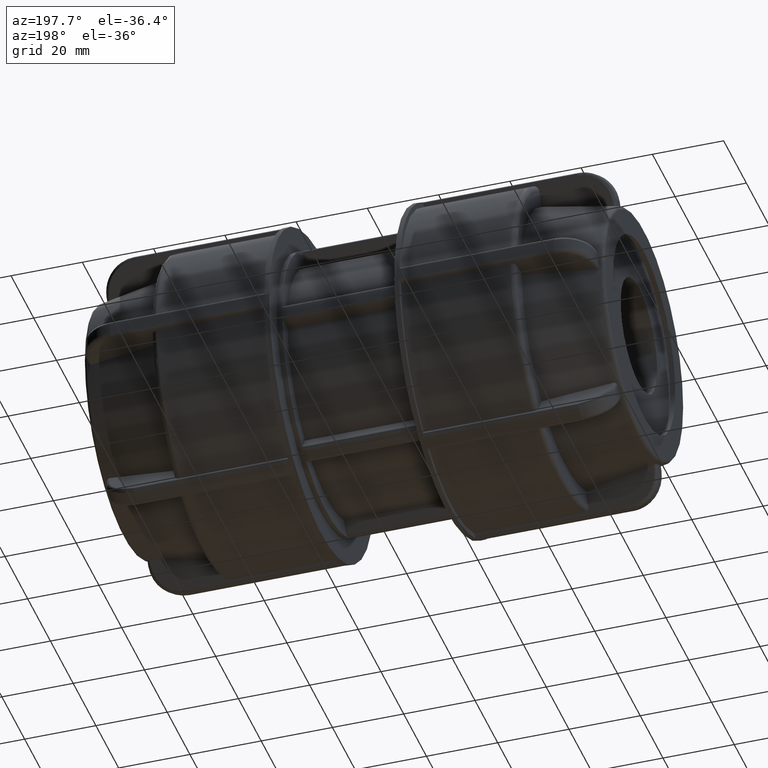
[diagram: clean part render]
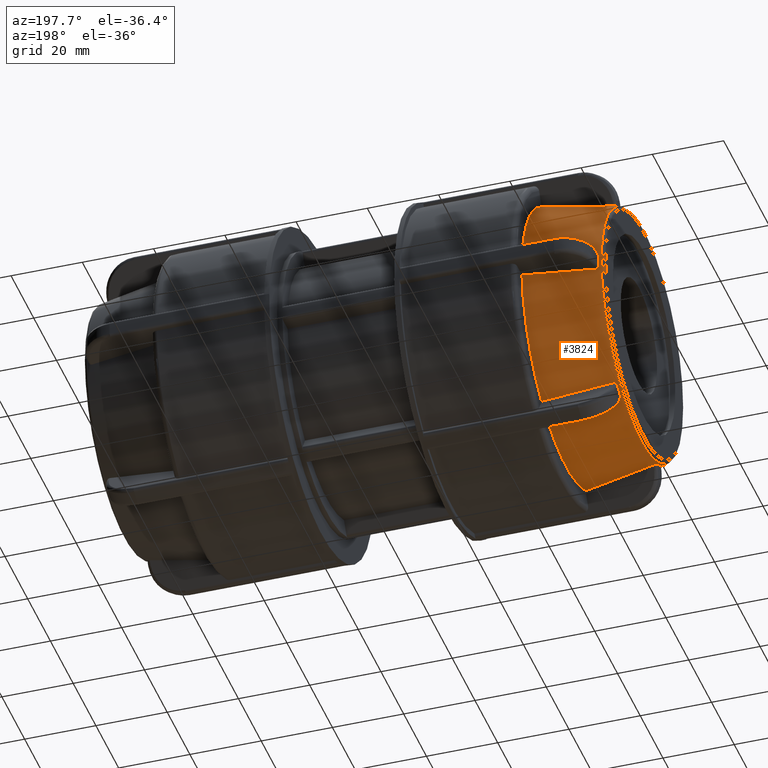
[diagram: same view with one face highlighted and labeled with its STEP entity id]
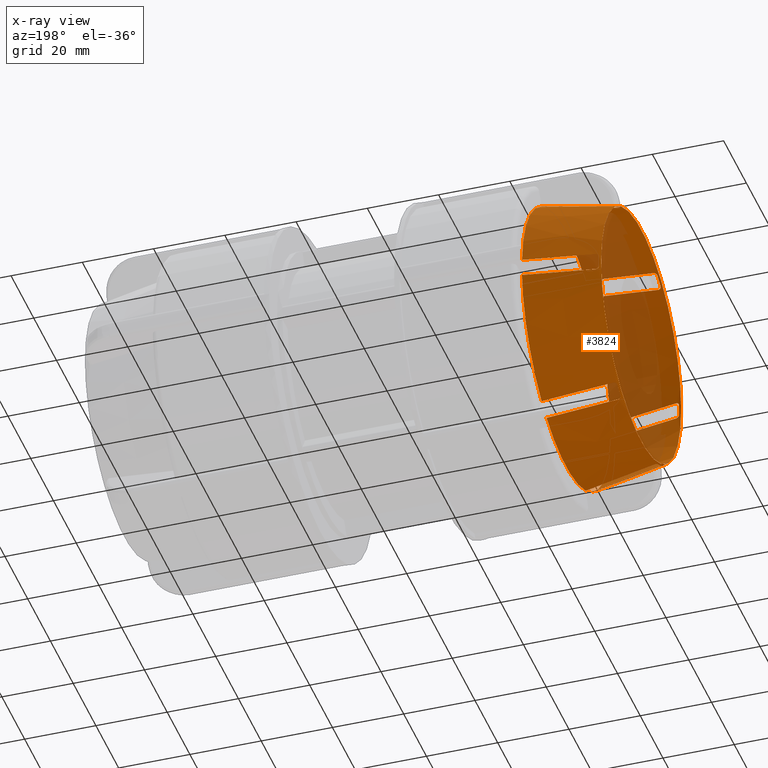
[diagram: x-ray of the same camera — body ghosted, the highlighted face saturated]
A machine part, auxiliary view. The second image highlights one B-rep face of the part: STEP entity #3824.
The next image is the same camera in x-ray: the body ghosted, the highlighted face saturated — about 24% of this face is hidden behind the body in this view.
In plain terms, the highlighted conical surface has half-angle 10 deg.
Its self-contained STEP definition (entity closure, byte-faithful):
#15=CONICAL_SURFACE('',#4187,36.9307804387577,10.);
#43=(
BOUNDED_CURVE()
B_SPLINE_CURVE(2,(#5802,#5803,#5804),.UNSPECIFIED.,.F.,.F.)
B_SPLINE_CURVE_WITH_KNOTS((3,3),(0.0978862907981361,2.07567538684826),
 .UNSPECIFIED.)
CURVE()
GEOMETRIC_REPRESENTATION_ITEM()
RATIONAL_B_SPLINE_CURVE((1.00010692586202,1.00113367958982,1.))
REPRESENTATION_ITEM('')
);
#44=(
BOUNDED_CURVE()
B_SPLINE_CURVE(2,(#6011,#6012,#6013),.UNSPECIFIED.,.F.,.F.)
B_SPLINE_CURVE_WITH_KNOTS((3,3),(0.097886288050849,2.07567538684826),
 .UNSPECIFIED.)
CURVE()
GEOMETRIC_REPRESENTATION_ITEM()
RATIONAL_B_SPLINE_CURVE((1.00010692558628,1.00113367669812,1.))
REPRESENTATION_ITEM('')
);
#45=(
BOUNDED_CURVE()
B_SPLINE_CURVE(2,(#6172,#6173,#6174),.UNSPECIFIED.,.F.,.F.)
B_SPLINE_CURVE_WITH_KNOTS((3,3),(0.0978862878450925,2.07567538684825),
 .UNSPECIFIED.)
CURVE()
GEOMETRIC_REPRESENTATION_ITEM()
RATIONAL_B_SPLINE_CURVE((1.00010692556916,1.00113367651901,1.))
REPRESENTATION_ITEM('')
);
#46=(
BOUNDED_CURVE()
B_SPLINE_CURVE(2,(#6333,#6334,#6335),.UNSPECIFIED.,.F.,.F.)
B_SPLINE_CURVE_WITH_KNOTS((3,3),(0.0978862877248222,2.07567538684826),
 .UNSPECIFIED.)
CURVE()
GEOMETRIC_REPRESENTATION_ITEM()
RATIONAL_B_SPLINE_CURVE((1.00010692554984,1.00113367631557,1.))
REPRESENTATION_ITEM('')
);
#47=(
BOUNDED_CURVE()
B_SPLINE_CURVE(2,(#6494,#6495,#6496),.UNSPECIFIED.,.F.,.F.)
B_SPLINE_CURVE_WITH_KNOTS((3,3),(0.0978862913825543,2.07567538684826),
 .UNSPECIFIED.)
CURVE()
GEOMETRIC_REPRESENTATION_ITEM()
RATIONAL_B_SPLINE_CURVE((1.00010692592062,1.00113368020443,1.))
REPRESENTATION_ITEM('')
);
#48=(
BOUNDED_CURVE()
B_SPLINE_CURVE(2,(#6571,#6572,#6573),.UNSPECIFIED.,.F.,.F.)
B_SPLINE_CURVE_WITH_KNOTS((3,3),(0.,1.97778909559017),.UNSPECIFIED.)
CURVE()
GEOMETRIC_REPRESENTATION_ITEM()
RATIONAL_B_SPLINE_CURVE((1.,1.00113368003445,1.00010692590445))
REPRESENTATION_ITEM('')
);
#49=(
BOUNDED_CURVE()
B_SPLINE_CURVE(2,(#6592,#6593,#6594),.UNSPECIFIED.,.F.,.F.)
B_SPLINE_CURVE_WITH_KNOTS((3,3),(0.,1.97778909576541),.UNSPECIFIED.)
CURVE()
GEOMETRIC_REPRESENTATION_ITEM()
RATIONAL_B_SPLINE_CURVE((1.,1.00113367997113,1.00010692589829))
REPRESENTATION_ITEM('')
);
#50=(
BOUNDED_CURVE()
B_SPLINE_CURVE(2,(#6613,#6614,#6615),.UNSPECIFIED.,.F.,.F.)
B_SPLINE_CURVE_WITH_KNOTS((3,3),(0.,1.97778909879865),.UNSPECIFIED.)
CURVE()
GEOMETRIC_REPRESENTATION_ITEM()
RATIONAL_B_SPLINE_CURVE((1.,1.00113367671594,1.00010692558796))
REPRESENTATION_ITEM('')
);
#51=(
BOUNDED_CURVE()
B_SPLINE_CURVE(2,(#6634,#6635,#6636),.UNSPECIFIED.,.F.,.F.)
B_SPLINE_CURVE_WITH_KNOTS((3,3),(0.,1.97778909900449),.UNSPECIFIED.)
CURVE()
GEOMETRIC_REPRESENTATION_ITEM()
RATIONAL_B_SPLINE_CURVE((1.,1.00113367653408,1.00010692557058))
REPRESENTATION_ITEM('')
);
#52=(
BOUNDED_CURVE()
B_SPLINE_CURVE(2,(#6655,#6656,#6657),.UNSPECIFIED.,.F.,.F.)
B_SPLINE_CURVE_WITH_KNOTS((3,3),(0.,1.9777890989628),.UNSPECIFIED.)
CURVE()
GEOMETRIC_REPRESENTATION_ITEM()
RATIONAL_B_SPLINE_CURVE((1.,1.00113367653728,1.00010692557093))
REPRESENTATION_ITEM('')
);
#53=(
BOUNDED_CURVE()
B_SPLINE_CURVE(2,(#6832,#6833,#6834),.UNSPECIFIED.,.F.,.F.)
B_SPLINE_CURVE_WITH_KNOTS((3,3),(0.0978862910512128,2.07567538684826),
 .UNSPECIFIED.)
CURVE()
GEOMETRIC_REPRESENTATION_ITEM()
RATIONAL_B_SPLINE_CURVE((1.00010692588545,1.00113367983534,1.))
REPRESENTATION_ITEM('')
);
#54=(
BOUNDED_CURVE()
B_SPLINE_CURVE(2,(#6906,#6907,#6908),.UNSPECIFIED.,.F.,.F.)
B_SPLINE_CURVE_WITH_KNOTS((3,3),(0.,1.97778909565073),.UNSPECIFIED.)
CURVE()
GEOMETRIC_REPRESENTATION_ITEM()
RATIONAL_B_SPLINE_CURVE((1.,1.00113368000241,1.00010692590137))
REPRESENTATION_ITEM('')
);
#69=B_SPLINE_CURVE_WITH_KNOTS('',3,(#5770,#5771,#5772,#5773,#5774,#5775,
#5776,#5777,#5778,#5779,#5780,#5781),.UNSPECIFIED.,.F.,.F.,(4,2,2,2,2,4),
(0.14021884159877,0.17398652698369,0.208477579891212,0.243444729621374,
0.278411879351537,0.279571970815808),.UNSPECIFIED.);
#73=B_SPLINE_CURVE_WITH_KNOTS('',3,(#5862,#5863,#5864,#5865,#5866,#5867,
#5868,#5869,#5870,#5871,#5872,#5873),.UNSPECIFIED.,.F.,.F.,(4,2,2,2,2,4),
(0.279506342428347,0.28066643389262,0.315633583622783,0.350600733352947,
0.385091786260468,0.418859471645387),.UNSPECIFIED.);
#76=B_SPLINE_CURVE_WITH_KNOTS('',3,(#5979,#5980,#5981,#5982,#5983,#5984,
#5985,#5986,#5987,#5988,#5989,#5990),.UNSPECIFIED.,.F.,.F.,(4,2,2,2,2,4),
(0.14021884159877,0.17398652698369,0.208477579891211,0.243444729621374,
0.278411879351538,0.279571970815791),.UNSPECIFIED.);
#80=B_SPLINE_CURVE_WITH_KNOTS('',3,(#6068,#6069,#6070,#6071,#6072,#6073,
#6074,#6075,#6076,#6077,#6078,#6079),.UNSPECIFIED.,.F.,.F.,(4,2,2,2,2,4),
(0.279506342428365,0.28066643389262,0.315633583622782,0.350600733352945,
0.385091786260467,0.418859471645386),.UNSPECIFIED.);
#83=B_SPLINE_CURVE_WITH_KNOTS('',3,(#6140,#6141,#6142,#6143,#6144,#6145,
#6146,#6147,#6148,#6149,#6150,#6151),.UNSPECIFIED.,.F.,.F.,(4,2,2,2,2,4),
(0.14021884159877,0.17398652698369,0.208477579891211,0.243444729621375,
0.278411879351539,0.279571970815789),.UNSPECIFIED.);
#87=B_SPLINE_CURVE_WITH_KNOTS('',3,(#6229,#6230,#6231,#6232,#6233,#6234,
#6235,#6236,#6237,#6238,#6239,#6240),.UNSPECIFIED.,.F.,.F.,(4,2,2,2,2,4),
(0.279506342428366,0.280666433892619,0.315633583622782,0.350600733352945,
0.385091786260467,0.418859471645386),.UNSPECIFIED.);
#90=B_SPLINE_CURVE_WITH_KNOTS('',3,(#6301,#6302,#6303,#6304,#6305,#6306,
#6307,#6308,#6309,#6310,#6311,#6312),.UNSPECIFIED.,.F.,.F.,(4,2,2,2,2,4),
(0.14021884159877,0.17398652698369,0.208477579891211,0.243444729621374,
0.278411879351537,0.279571970815788),.UNSPECIFIED.);
#94=B_SPLINE_CURVE_WITH_KNOTS('',3,(#6390,#6391,#6392,#6393,#6394,#6395,
#6396,#6397,#6398,#6399,#6400,#6401),.UNSPECIFIED.,.F.,.F.,(4,2,2,2,2,4),
(0.279506342428366,0.280666433892618,0.315633583622781,0.350600733352945,
0.385091786260466,0.418859471645386),.UNSPECIFIED.);
#97=B_SPLINE_CURVE_WITH_KNOTS('',3,(#6462,#6463,#6464,#6465,#6466,#6467,
#6468,#6469,#6470,#6471,#6472,#6473),.UNSPECIFIED.,.F.,.F.,(4,2,2,2,2,4),
(0.14021884159877,0.17398652698369,0.208477579891212,0.243444729621375,
0.278411879351537,0.279571970815813),.UNSPECIFIED.);
#101=B_SPLINE_CURVE_WITH_KNOTS('',3,(#6551,#6552,#6553,#6554,#6555,#6556,
#6557,#6558,#6559,#6560,#6561,#6562),.UNSPECIFIED.,.F.,.F.,(4,2,2,2,2,4),
(0.279506342428344,0.280666433892617,0.31563358362278,0.350600733352943,
0.385091786260465,0.418859471645385),.UNSPECIFIED.);
#111=B_SPLINE_CURVE_WITH_KNOTS('',3,(#6817,#6818,#6819,#6820,#6821,#6822,
#6823,#6824,#6825,#6826,#6827,#6828),.UNSPECIFIED.,.F.,.F.,(4,2,2,2,2,4),
(0.140218841598771,0.17398652698369,0.208477579891212,0.243444729621375,
0.278411879351539,0.279571970815811),.UNSPECIFIED.);
#114=B_SPLINE_CURVE_WITH_KNOTS('',3,(#6887,#6888,#6889,#6890,#6891,#6892,
#6893,#6894,#6895,#6896,#6897,#6898),.UNSPECIFIED.,.F.,.F.,(4,2,2,2,2,4),
(0.279506342428345,0.280666433892618,0.315633583622782,0.350600733352945,
0.385091786260466,0.418859471645386),.UNSPECIFIED.);
#203=FACE_BOUND('',#685,.T.);
#438=FACE_OUTER_BOUND('',#684,.T.);
#684=EDGE_LOOP('',(#3080,#3081,#3082,#3083,#3084,#3085,#3086,#3087,#3088,
#3089,#3090,#3091,#3092,#3093,#3094,#3095,#3096,#3097,#3098,#3099,#3100,
#3101,#3102,#3103,#3104,#3105,#3106,#3107,#3108,#3109,#3110,#3111,#3112,
#3113,#3114,#3115));
#685=EDGE_LOOP('',(#3116));
#1308=CIRCLE('',#4034,35.2574373918344);
#1329=CIRCLE('',#4063,35.2574373918344);
#1337=CIRCLE('',#4078,35.2574373918344);
#1345=CIRCLE('',#4093,35.2574373918344);
#1353=CIRCLE('',#4108,35.2574373918344);
#1356=CIRCLE('',#4118,38.8615608775154);
#1358=CIRCLE('',#4121,38.8615608775154);
#1360=CIRCLE('',#4124,38.8615608775154);
#1362=CIRCLE('',#4127,38.8615608775154);
#1363=CIRCLE('',#4129,38.8615608775154);
#1366=CIRCLE('',#4133,38.8615608775154);
#1386=CIRCLE('',#4180,35.2574373918344);
#1389=CIRCLE('',#4186,35.1457081218349);
#1567=VERTEX_POINT('',#5768);
#1568=VERTEX_POINT('',#5769);
#1572=VERTEX_POINT('',#5800);
#1579=VERTEX_POINT('',#5860);
#1580=VERTEX_POINT('',#5861);
#1606=VERTEX_POINT('',#5977);
#1607=VERTEX_POINT('',#5978);
#1611=VERTEX_POINT('',#6009);
#1616=VERTEX_POINT('',#6066);
#1617=VERTEX_POINT('',#6067);
#1622=VERTEX_POINT('',#6138);
#1623=VERTEX_POINT('',#6139);
#1627=VERTEX_POINT('',#6170);
#1632=VERTEX_POINT('',#6227);
#1633=VERTEX_POINT('',#6228);
#1638=VERTEX_POINT('',#6299);
#1639=VERTEX_POINT('',#6300);
#1643=VERTEX_POINT('',#6331);
#1648=VERTEX_POINT('',#6388);
#1649=VERTEX_POINT('',#6389);
#1654=VERTEX_POINT('',#6460);
#1655=VERTEX_POINT('',#6461);
#1659=VERTEX_POINT('',#6492);
#1664=VERTEX_POINT('',#6549);
#1665=VERTEX_POINT('',#6550);
#1666=VERTEX_POINT('',#6570);
#1670=VERTEX_POINT('',#6591);
#1674=VERTEX_POINT('',#6612);
#1678=VERTEX_POINT('',#6633);
#1682=VERTEX_POINT('',#6654);
#1687=VERTEX_POINT('',#6677);
#1688=VERTEX_POINT('',#6690);
#1700=VERTEX_POINT('',#6815);
#1701=VERTEX_POINT('',#6816);
#1705=VERTEX_POINT('',#6885);
#1706=VERTEX_POINT('',#6886);
#1708=VERTEX_POINT('',#6912);
#1981=EDGE_CURVE('',#1567,#1568,#69,.F.);
#1988=EDGE_CURVE('',#1567,#1572,#43,.T.);
#1996=EDGE_CURVE('',#1579,#1580,#73,.F.);
#1999=EDGE_CURVE('',#1579,#1568,#1308,.T.);
#2030=EDGE_CURVE('',#1606,#1607,#76,.F.);
#2037=EDGE_CURVE('',#1606,#1611,#44,.T.);
#2044=EDGE_CURVE('',#1616,#1617,#80,.F.);
#2047=EDGE_CURVE('',#1616,#1607,#1329,.T.);
#2055=EDGE_CURVE('',#1622,#1623,#83,.F.);
#2062=EDGE_CURVE('',#1622,#1627,#45,.T.);
#2069=EDGE_CURVE('',#1632,#1633,#87,.F.);
#2072=EDGE_CURVE('',#1632,#1623,#1337,.T.);
#2080=EDGE_CURVE('',#1638,#1639,#90,.F.);
#2087=EDGE_CURVE('',#1638,#1643,#46,.T.);
#2094=EDGE_CURVE('',#1648,#1649,#94,.F.);
#2097=EDGE_CURVE('',#1648,#1639,#1345,.T.);
#2105=EDGE_CURVE('',#1654,#1655,#97,.F.);
#2112=EDGE_CURVE('',#1654,#1659,#47,.T.);
#2119=EDGE_CURVE('',#1664,#1665,#101,.F.);
#2122=EDGE_CURVE('',#1664,#1655,#1353,.T.);
#2124=EDGE_CURVE('',#1666,#1665,#48,.T.);
#2129=EDGE_CURVE('',#1670,#1580,#49,.T.);
#2134=EDGE_CURVE('',#1674,#1617,#50,.T.);
#2139=EDGE_CURVE('',#1678,#1633,#51,.T.);
#2144=EDGE_CURVE('',#1682,#1649,#52,.T.);
#2151=EDGE_CURVE('',#1687,#1659,#1356,.T.);
#2153=EDGE_CURVE('',#1666,#1643,#1358,.T.);
#2155=EDGE_CURVE('',#1682,#1627,#1360,.T.);
#2157=EDGE_CURVE('',#1678,#1611,#1362,.T.);
#2158=EDGE_CURVE('',#1670,#1688,#1363,.T.);
#2162=EDGE_CURVE('',#1674,#1572,#1366,.T.);
#2189=EDGE_CURVE('',#1700,#1701,#111,.F.);
#2192=EDGE_CURVE('',#1700,#1688,#53,.T.);
#2198=EDGE_CURVE('',#1705,#1706,#114,.F.);
#2201=EDGE_CURVE('',#1705,#1701,#1386,.T.);
#2203=EDGE_CURVE('',#1687,#1706,#54,.T.);
#2205=EDGE_CURVE('',#1708,#1708,#1389,.T.);
#3080=ORIENTED_EDGE('',*,*,#1988,.T.);
#3081=ORIENTED_EDGE('',*,*,#2162,.F.);
#3082=ORIENTED_EDGE('',*,*,#2134,.T.);
#3083=ORIENTED_EDGE('',*,*,#2044,.F.);
#3084=ORIENTED_EDGE('',*,*,#2047,.T.);
#3085=ORIENTED_EDGE('',*,*,#2030,.F.);
#3086=ORIENTED_EDGE('',*,*,#2037,.T.);
#3087=ORIENTED_EDGE('',*,*,#2157,.F.);
#3088=ORIENTED_EDGE('',*,*,#2139,.T.);
#3089=ORIENTED_EDGE('',*,*,#2069,.F.);
#3090=ORIENTED_EDGE('',*,*,#2072,.T.);
#3091=ORIENTED_EDGE('',*,*,#2055,.F.);
#3092=ORIENTED_EDGE('',*,*,#2062,.T.);
#3093=ORIENTED_EDGE('',*,*,#2155,.F.);
#3094=ORIENTED_EDGE('',*,*,#2144,.T.);
#3095=ORIENTED_EDGE('',*,*,#2094,.F.);
#3096=ORIENTED_EDGE('',*,*,#2097,.T.);
#3097=ORIENTED_EDGE('',*,*,#2080,.F.);
#3098=ORIENTED_EDGE('',*,*,#2087,.T.);
#3099=ORIENTED_EDGE('',*,*,#2153,.F.);
#3100=ORIENTED_EDGE('',*,*,#2124,.T.);
#3101=ORIENTED_EDGE('',*,*,#2119,.F.);
#3102=ORIENTED_EDGE('',*,*,#2122,.T.);
#3103=ORIENTED_EDGE('',*,*,#2105,.F.);
#3104=ORIENTED_EDGE('',*,*,#2112,.T.);
#3105=ORIENTED_EDGE('',*,*,#2151,.F.);
#3106=ORIENTED_EDGE('',*,*,#2203,.T.);
#3107=ORIENTED_EDGE('',*,*,#2198,.F.);
#3108=ORIENTED_EDGE('',*,*,#2201,.T.);
#3109=ORIENTED_EDGE('',*,*,#2189,.F.);
#3110=ORIENTED_EDGE('',*,*,#2192,.T.);
#3111=ORIENTED_EDGE('',*,*,#2158,.F.);
#3112=ORIENTED_EDGE('',*,*,#2129,.T.);
#3113=ORIENTED_EDGE('',*,*,#1996,.F.);
#3114=ORIENTED_EDGE('',*,*,#1999,.T.);
#3115=ORIENTED_EDGE('',*,*,#1981,.F.);
#3116=ORIENTED_EDGE('',*,*,#2205,.F.);
#3824=ADVANCED_FACE('',(#438,#203),#15,.T.);
#4034=AXIS2_PLACEMENT_3D('',#5877,#4658,#4659);
#4063=AXIS2_PLACEMENT_3D('',#6083,#4735,#4736);
#4078=AXIS2_PLACEMENT_3D('',#6244,#4774,#4775);
#4093=AXIS2_PLACEMENT_3D('',#6405,#4813,#4814);
#4108=AXIS2_PLACEMENT_3D('',#6566,#4852,#4853);
#4118=AXIS2_PLACEMENT_3D('',#6679,#4888,#4889);
#4121=AXIS2_PLACEMENT_3D('',#6682,#4894,#4895);
#4124=AXIS2_PLACEMENT_3D('',#6685,#4900,#4901);
#4127=AXIS2_PLACEMENT_3D('',#6688,#4906,#4907);
#4129=AXIS2_PLACEMENT_3D('',#6691,#4910,#4911);
#4133=AXIS2_PLACEMENT_3D('',#6697,#4919,#4920);
#4180=AXIS2_PLACEMENT_3D('',#6902,#5023,#5024);
#4186=AXIS2_PLACEMENT_3D('',#6913,#5035,#5036);
#4187=AXIS2_PLACEMENT_3D('',#6914,#5037,#5038);
#4658=DIRECTION('center_axis',(-1.,-3.19338564753439E-16,-2.28229996066269E-17));
#4659=DIRECTION('ref_axis',(-3.3251542972004E-16,1.,0.));
#4735=DIRECTION('center_axis',(-1.,-3.4569229468664E-16,-2.28229996066269E-17));
#4736=DIRECTION('ref_axis',(-3.3251542972004E-16,1.,0.));
#4774=DIRECTION('center_axis',(-1.,-3.58869159653241E-16,-4.62223186652937E-32));
#4775=DIRECTION('ref_axis',(-3.3251542972004E-16,1.,0.));
#4813=DIRECTION('center_axis',(-1.,-3.4569229468664E-16,2.28229996066268E-17));
#4814=DIRECTION('ref_axis',(-3.3251542972004E-16,1.,0.));
#4852=DIRECTION('center_axis',(-1.,-3.19338564753439E-16,2.28229996066269E-17));
#4853=DIRECTION('ref_axis',(-3.3251542972004E-16,1.,0.));
#4888=DIRECTION('center_axis',(1.,3.06161699786838E-16,0.));
#4889=DIRECTION('ref_axis',(0.,0.,-1.));
#4894=DIRECTION('center_axis',(1.,3.06161699786838E-16,0.));
#4895=DIRECTION('ref_axis',(0.,0.,-1.));
#4900=DIRECTION('center_axis',(1.,3.06161699786838E-16,0.));
#4901=DIRECTION('ref_axis',(0.,0.,-1.));
#4906=DIRECTION('center_axis',(1.,3.06161699786838E-16,0.));
#4907=DIRECTION('ref_axis',(0.,0.,-1.));
#4910=DIRECTION('center_axis',(1.,3.06161699786838E-16,0.));
#4911=DIRECTION('ref_axis',(0.,0.,-1.));
#4919=DIRECTION('center_axis',(1.,3.06161699786838E-16,0.));
#4920=DIRECTION('ref_axis',(0.,0.,-1.));
#5023=DIRECTION('center_axis',(-1.,-3.06161699786838E-16,0.));
#5024=DIRECTION('ref_axis',(-3.3251542972004E-16,1.,0.));
#5035=DIRECTION('center_axis',(-1.,-2.52713195199026E-16,5.58312934150069E-32));
#5036=DIRECTION('ref_axis',(2.52713195199026E-16,-1.,3.06161699786839E-17));
#5037=DIRECTION('center_axis',(1.,3.06161699786838E-16,0.));
#5038=DIRECTION('ref_axis',(-3.3251542972004E-16,1.,0.));
#5768=CARTESIAN_POINT('',(-70.62,15.5005965971032,-31.8478208538122));
#5769=CARTESIAN_POINT('',(-71.54,16.242688432224,-31.2931616161233));
#5770=CARTESIAN_POINT('Ctrl Pts',(-71.54,16.242688432224,-31.2931616161233));
#5771=CARTESIAN_POINT('Ctrl Pts',(-71.54,16.1425106026286,-31.3451588318056));
#5772=CARTESIAN_POINT('Ctrl Pts',(-71.5180449775594,16.0375118115445,-31.4033489572621));
#5773=CARTESIAN_POINT('Ctrl Pts',(-71.4278523184448,15.8453531800499,-31.5185536624937));
#5774=CARTESIAN_POINT('Ctrl Pts',(-71.3585799839163,15.7586429339944,-31.5755509506214));
#5775=CARTESIAN_POINT('Ctrl Pts',(-71.1973968149064,15.6245827303515,-31.6737994008835));
#5776=CARTESIAN_POINT('Ctrl Pts',(-71.0944200419447,15.5687995860925,-31.7214114704913));
#5777=CARTESIAN_POINT('Ctrl Pts',(-70.8688335911244,15.5019044530926,-31.7984138873874));
#5778=CARTESIAN_POINT('Ctrl Pts',(-70.7462357545523,15.4907913737613,-31.8278379733401));
#5779=CARTESIAN_POINT('Ctrl Pts',(-70.6276411304749,15.4999427418108,-31.8466406447133));
#5780=CARTESIAN_POINT('Ctrl Pts',(-70.6238244710552,15.5002585753472,-31.8472353829566));
#5781=CARTESIAN_POINT('Ctrl Pts',(-70.6200000000001,15.5005965971035,-31.8478208538126));
#5800=CARTESIAN_POINT('',(-51.1,17.225468418756,-34.8353864854586));
#5802=CARTESIAN_POINT('Ctrl Pts',(-70.6200000000002,15.5005965971032,-31.8478208538121));
#5803=CARTESIAN_POINT('Ctrl Pts',(-61.3143031079899,16.3230705973264,-33.2723876101031));
#5804=CARTESIAN_POINT('Ctrl Pts',(-51.1,17.225468418756,-34.8353864854586));
#5860=CARTESIAN_POINT('',(-71.54,18.9793287081828,-29.7131616161234));
#5861=CARTESIAN_POINT('',(-70.62,19.8307236160255,-29.3478208538123));
#5862=CARTESIAN_POINT('Ctrl Pts',(-70.6200000000001,19.8307236160257,-29.3478208538126));
#5863=CARTESIAN_POINT('Ctrl Pts',(-70.6238244710552,19.8303855942694,-29.3472353829566));
#5864=CARTESIAN_POINT('Ctrl Pts',(-70.6276411304749,19.8300284526103,-29.3466644939691));
#5865=CARTESIAN_POINT('Ctrl Pts',(-70.7462357545523,19.8183205455668,-29.3293378410722));
#5866=CARTESIAN_POINT('Ctrl Pts',(-70.8688335911244,19.787281999983,-29.324250007111));
#5867=CARTESIAN_POINT('Ctrl Pts',(-71.0944200419447,19.6871483842982,-29.3436816832304));
#5868=CARTESIAN_POINT('Ctrl Pts',(-71.1973968149064,19.6180235503616,-29.3681852684579));
#5869=CARTESIAN_POINT('Ctrl Pts',(-71.3585799839163,19.4659077947307,-29.4351605853181));
#5870=CARTESIAN_POINT('Ctrl Pts',(-71.4278523184448,19.3731915722376,-29.4817552171067));
#5871=CARTESIAN_POINT('Ctrl Pts',(-71.5180449775594,19.1773420551242,-29.5905671209216));
#5872=CARTESIAN_POINT('Ctrl Pts',(-71.54,19.0744485326874,-29.6524036786389));
#5873=CARTESIAN_POINT('Ctrl Pts',(-71.54,18.9793287081828,-29.7131616161234));
#5877=CARTESIAN_POINT('Origin',(-71.54,-2.19028080027504E-14,0.));
#5977=CARTESIAN_POINT('',(-70.62,-19.830723616025,-29.3478208538113));
#5978=CARTESIAN_POINT('',(-71.54,-18.9793287081829,-29.7131616161233));
#5979=CARTESIAN_POINT('Ctrl Pts',(-71.54,-18.9793287081829,-29.7131616161233));
#5980=CARTESIAN_POINT('Ctrl Pts',(-71.54,-19.0744485326875,-29.6524036786389));
#5981=CARTESIAN_POINT('Ctrl Pts',(-71.5180449775593,-19.1773420551242,-29.5905671209216));
#5982=CARTESIAN_POINT('Ctrl Pts',(-71.4278523184447,-19.3731915722377,-29.4817552171066));
#5983=CARTESIAN_POINT('Ctrl Pts',(-71.3585799839163,-19.4659077947308,-29.4351605853181));
#5984=CARTESIAN_POINT('Ctrl Pts',(-71.1973968149064,-19.6180235503617,-29.3681852684578));
#5985=CARTESIAN_POINT('Ctrl Pts',(-71.0944200419447,-19.6871483842983,-29.3436816832304));
#5986=CARTESIAN_POINT('Ctrl Pts',(-70.8688335911243,-19.7872819999831,-29.324250007111));
#5987=CARTESIAN_POINT('Ctrl Pts',(-70.7462357545522,-19.8183205455669,-29.3293378410722));
#5988=CARTESIAN_POINT('Ctrl Pts',(-70.6276411304749,-19.8300284526104,-29.3466644939691));
#5989=CARTESIAN_POINT('Ctrl Pts',(-70.6238244710553,-19.8303855942694,-29.3472353829565));
#5990=CARTESIAN_POINT('Ctrl Pts',(-70.6200000000003,-19.8307236160258,-29.3478208538126));
#6009=CARTESIAN_POINT('',(-51.1,-21.5555954376783,-32.3353864854586));
#6011=CARTESIAN_POINT('Ctrl Pts',(-70.6200000000002,-19.830723616025,-29.3478208538112));
#6012=CARTESIAN_POINT('Ctrl Pts',(-61.3143028211677,-20.6531976415944,-30.7723876540031));
#6013=CARTESIAN_POINT('Ctrl Pts',(-51.1,-21.5555954376783,-32.3353864854586));
#6066=CARTESIAN_POINT('',(-71.54,-16.2426884322241,-31.2931616161233));
#6067=CARTESIAN_POINT('',(-70.62,-15.5005965971028,-31.8478208538113));
#6068=CARTESIAN_POINT('Ctrl Pts',(-70.6200000000003,-15.5005965971036,-31.8478208538126));
#6069=CARTESIAN_POINT('Ctrl Pts',(-70.6238244710553,-15.5002585753473,-31.8472353829565));
#6070=CARTESIAN_POINT('Ctrl Pts',(-70.6276411304749,-15.4999427418109,-31.8466406447133));
#6071=CARTESIAN_POINT('Ctrl Pts',(-70.7462357545523,-15.4907913737614,-31.82783797334));
#6072=CARTESIAN_POINT('Ctrl Pts',(-70.8688335911244,-15.5019044530927,-31.7984138873874));
#6073=CARTESIAN_POINT('Ctrl Pts',(-71.0944200419447,-15.5687995860926,-31.7214114704912));
#6074=CARTESIAN_POINT('Ctrl Pts',(-71.1973968149064,-15.6245827303516,-31.6737994008835));
#6075=CARTESIAN_POINT('Ctrl Pts',(-71.3585799839163,-15.7586429339945,-31.5755509506214));
#6076=CARTESIAN_POINT('Ctrl Pts',(-71.4278523184447,-15.84535318005,-31.5185536624937));
#6077=CARTESIAN_POINT('Ctrl Pts',(-71.5180449775593,-16.0375118115446,-31.403348957262));
#6078=CARTESIAN_POINT('Ctrl Pts',(-71.54,-16.1425106026287,-31.3451588318056));
#6079=CARTESIAN_POINT('Ctrl Pts',(-71.54,-16.2426884322241,-31.2931616161233));
#6083=CARTESIAN_POINT('Origin',(-71.54,-2.19028080027504E-14,0.));
#6138=CARTESIAN_POINT('',(-70.62,-35.3313202131277,2.50000000000001));
#6139=CARTESIAN_POINT('',(-71.54,-35.222017140407,1.58000000000001));
#6140=CARTESIAN_POINT('Ctrl Pts',(-71.54,-35.222017140407,1.58000000000001));
#6141=CARTESIAN_POINT('Ctrl Pts',(-71.54,-35.2169591353162,1.69275515316672));
#6142=CARTESIAN_POINT('Ctrl Pts',(-71.5180449775593,-35.2148538666688,1.81278183634044));
#6143=CARTESIAN_POINT('Ctrl Pts',(-71.4278523184447,-35.2185447522876,2.03679844538709));
#6144=CARTESIAN_POINT('Ctrl Pts',(-71.3585799839163,-35.2245507287253,2.14039036530335));
#6145=CARTESIAN_POINT('Ctrl Pts',(-71.1973968149064,-35.2426062807133,2.30561413242567));
#6146=CARTESIAN_POINT('Ctrl Pts',(-71.0944200419447,-35.2559479703908,2.37772978726083));
#6147=CARTESIAN_POINT('Ctrl Pts',(-70.8688335911243,-35.2891864530757,2.47416388027637));
#6148=CARTESIAN_POINT('Ctrl Pts',(-70.7462357545522,-35.3091119193282,2.49850013226785));
#6149=CARTESIAN_POINT('Ctrl Pts',(-70.6276411304749,-35.3299711944212,2.49997615074426));
#6150=CARTESIAN_POINT('Ctrl Pts',(-70.6238244710553,-35.3306441696166,2.50000000000001));
#6151=CARTESIAN_POINT('Ctrl Pts',(-70.6200000000003,-35.3313202131293,2.50000000000001));
#6170=CARTESIAN_POINT('',(-51.1,-38.7810638564343,2.50000000000001));
#6172=CARTESIAN_POINT('Ctrl Pts',(-70.6200000000002,-35.3313202131277,2.50000000000001));
#6173=CARTESIAN_POINT('Ctrl Pts',(-61.3143028000344,-36.9762682680014,2.50000000000001));
#6174=CARTESIAN_POINT('Ctrl Pts',(-51.1,-38.7810638564343,2.50000000000001));
#6227=CARTESIAN_POINT('',(-71.54,-35.222017140407,-1.57999999999999));
#6228=CARTESIAN_POINT('',(-70.62,-35.3313202131277,-2.49999999999999));
#6229=CARTESIAN_POINT('Ctrl Pts',(-70.6200000000002,-35.3313202131293,-2.49999999999999));
#6230=CARTESIAN_POINT('Ctrl Pts',(-70.6238244710553,-35.3306441696166,-2.49999999999999));
#6231=CARTESIAN_POINT('Ctrl Pts',(-70.6276411304749,-35.3299711944212,-2.49997615074424));
#6232=CARTESIAN_POINT('Ctrl Pts',(-70.7462357545522,-35.3091119193282,-2.49850013226782));
#6233=CARTESIAN_POINT('Ctrl Pts',(-70.8688335911243,-35.2891864530757,-2.47416388027635));
#6234=CARTESIAN_POINT('Ctrl Pts',(-71.0944200419447,-35.2559479703908,-2.37772978726082));
#6235=CARTESIAN_POINT('Ctrl Pts',(-71.1973968149064,-35.2426062807133,-2.30561413242564));
#6236=CARTESIAN_POINT('Ctrl Pts',(-71.3585799839163,-35.2245507287253,-2.14039036530332));
#6237=CARTESIAN_POINT('Ctrl Pts',(-71.4278523184447,-35.2185447522876,-2.03679844538707));
#6238=CARTESIAN_POINT('Ctrl Pts',(-71.5180449775593,-35.2148538666688,-1.81278183634042));
#6239=CARTESIAN_POINT('Ctrl Pts',(-71.54,-35.2169591353162,-1.69275515316669));
#6240=CARTESIAN_POINT('Ctrl Pts',(-71.54,-35.222017140407,-1.57999999999999));
#6244=CARTESIAN_POINT('Origin',(-71.54,-2.19028080027504E-14,0.));
#6299=CARTESIAN_POINT('',(-70.62,-15.5005965971027,31.8478208538112));
#6300=CARTESIAN_POINT('',(-71.54,-16.2426884322241,31.2931616161233));
#6301=CARTESIAN_POINT('Ctrl Pts',(-71.54,-16.2426884322241,31.2931616161233));
#6302=CARTESIAN_POINT('Ctrl Pts',(-71.54,-16.1425106026287,31.3451588318056));
#6303=CARTESIAN_POINT('Ctrl Pts',(-71.5180449775593,-16.0375118115446,31.403348957262));
#6304=CARTESIAN_POINT('Ctrl Pts',(-71.4278523184447,-15.8453531800499,31.5185536624937));
#6305=CARTESIAN_POINT('Ctrl Pts',(-71.3585799839163,-15.7586429339945,31.5755509506214));
#6306=CARTESIAN_POINT('Ctrl Pts',(-71.1973968149064,-15.6245827303516,31.6737994008835));
#6307=CARTESIAN_POINT('Ctrl Pts',(-71.0944200419447,-15.5687995860926,31.7214114704913));
#6308=CARTESIAN_POINT('Ctrl Pts',(-70.8688335911244,-15.5019044530926,31.7984138873874));
#6309=CARTESIAN_POINT('Ctrl Pts',(-70.7462357545522,-15.4907913737614,31.82783797334));
#6310=CARTESIAN_POINT('Ctrl Pts',(-70.6276411304749,-15.4999427418108,31.8466406447133));
#6311=CARTESIAN_POINT('Ctrl Pts',(-70.6238244710553,-15.5002585753472,31.8472353829566));
#6312=CARTESIAN_POINT('Ctrl Pts',(-70.6200000000003,-15.5005965971035,31.8478208538126));
#6331=CARTESIAN_POINT('',(-51.1,-17.2254684187561,34.8353864854586));
#6333=CARTESIAN_POINT('Ctrl Pts',(-70.6200000000002,-15.5005965971027,31.8478208538111));
#6334=CARTESIAN_POINT('Ctrl Pts',(-61.3143027867637,-16.3230706257123,33.2723876592688));
#6335=CARTESIAN_POINT('Ctrl Pts',(-51.1,-17.2254684187561,34.8353864854586));
#6388=CARTESIAN_POINT('',(-71.54,-18.9793287081829,29.7131616161233));
#6389=CARTESIAN_POINT('',(-70.62,-19.830723616025,29.3478208538112));
#6390=CARTESIAN_POINT('Ctrl Pts',(-70.6200000000003,-19.8307236160257,29.3478208538126));
#6391=CARTESIAN_POINT('Ctrl Pts',(-70.6238244710553,-19.8303855942694,29.3472353829565));
#6392=CARTESIAN_POINT('Ctrl Pts',(-70.6276411304749,-19.8300284526104,29.3466644939691));
#6393=CARTESIAN_POINT('Ctrl Pts',(-70.7462357545523,-19.8183205455668,29.3293378410722));
#6394=CARTESIAN_POINT('Ctrl Pts',(-70.8688335911244,-19.787281999983,29.324250007111));
#6395=CARTESIAN_POINT('Ctrl Pts',(-71.0944200419447,-19.6871483842982,29.3436816832304));
#6396=CARTESIAN_POINT('Ctrl Pts',(-71.1973968149064,-19.6180235503617,29.3681852684579));
#6397=CARTESIAN_POINT('Ctrl Pts',(-71.3585799839163,-19.4659077947308,29.4351605853181));
#6398=CARTESIAN_POINT('Ctrl Pts',(-71.4278523184447,-19.3731915722377,29.4817552171066));
#6399=CARTESIAN_POINT('Ctrl Pts',(-71.5180449775593,-19.1773420551242,29.5905671209216));
#6400=CARTESIAN_POINT('Ctrl Pts',(-71.54,-19.0744485326875,29.6524036786389));
#6401=CARTESIAN_POINT('Ctrl Pts',(-71.54,-18.9793287081829,29.7131616161233));
#6405=CARTESIAN_POINT('Origin',(-71.54,-2.19028080027504E-14,0.));
#6460=CARTESIAN_POINT('',(-70.62,19.8307236160256,29.3478208538123));
#6461=CARTESIAN_POINT('',(-71.54,18.9793287081829,29.7131616161233));
#6462=CARTESIAN_POINT('Ctrl Pts',(-71.54,18.9793287081829,29.7131616161233));
#6463=CARTESIAN_POINT('Ctrl Pts',(-71.54,19.0744485326875,29.6524036786389));
#6464=CARTESIAN_POINT('Ctrl Pts',(-71.5180449775593,19.1773420551242,29.5905671209216));
#6465=CARTESIAN_POINT('Ctrl Pts',(-71.4278523184448,19.3731915722376,29.4817552171066));
#6466=CARTESIAN_POINT('Ctrl Pts',(-71.3585799839163,19.4659077947308,29.4351605853181));
#6467=CARTESIAN_POINT('Ctrl Pts',(-71.1973968149064,19.6180235503616,29.3681852684578));
#6468=CARTESIAN_POINT('Ctrl Pts',(-71.0944200419447,19.6871483842982,29.3436816832304));
#6469=CARTESIAN_POINT('Ctrl Pts',(-70.8688335911244,19.787281999983,29.324250007111));
#6470=CARTESIAN_POINT('Ctrl Pts',(-70.7462357545523,19.8183205455668,29.3293378410722));
#6471=CARTESIAN_POINT('Ctrl Pts',(-70.6276411304749,19.8300284526103,29.3466644939691));
#6472=CARTESIAN_POINT('Ctrl Pts',(-70.6238244710551,19.8303855942694,29.3472353829566));
#6473=CARTESIAN_POINT('Ctrl Pts',(-70.6200000000001,19.8307236160257,29.3478208538126));
#6492=CARTESIAN_POINT('',(-51.1,21.5555954376782,32.3353864854586));
#6494=CARTESIAN_POINT('Ctrl Pts',(-70.6200000000002,19.8307236160256,29.3478208538123));
#6495=CARTESIAN_POINT('Ctrl Pts',(-61.3143031689993,20.6531976108574,30.7723876007652));
#6496=CARTESIAN_POINT('Ctrl Pts',(-51.1,21.5555954376782,32.3353864854586));
#6549=CARTESIAN_POINT('',(-71.54,16.242688432224,31.2931616161233));
#6550=CARTESIAN_POINT('',(-70.62,15.5005965971034,31.8478208538123));
#6551=CARTESIAN_POINT('Ctrl Pts',(-70.6200000000001,15.5005965971035,31.8478208538126));
#6552=CARTESIAN_POINT('Ctrl Pts',(-70.6238244710551,15.5002585753472,31.8472353829566));
#6553=CARTESIAN_POINT('Ctrl Pts',(-70.6276411304748,15.4999427418108,31.8466406447133));
#6554=CARTESIAN_POINT('Ctrl Pts',(-70.7462357545523,15.4907913737613,31.82783797334));
#6555=CARTESIAN_POINT('Ctrl Pts',(-70.8688335911244,15.5019044530926,31.7984138873874));
#6556=CARTESIAN_POINT('Ctrl Pts',(-71.0944200419447,15.5687995860925,31.7214114704912));
#6557=CARTESIAN_POINT('Ctrl Pts',(-71.1973968149064,15.6245827303516,31.6737994008835));
#6558=CARTESIAN_POINT('Ctrl Pts',(-71.3585799839163,15.7586429339945,31.5755509506214));
#6559=CARTESIAN_POINT('Ctrl Pts',(-71.4278523184448,15.8453531800499,31.5185536624937));
#6560=CARTESIAN_POINT('Ctrl Pts',(-71.5180449775594,16.0375118115445,31.403348957262));
#6561=CARTESIAN_POINT('Ctrl Pts',(-71.54,16.1425106026287,31.3451588318056));
#6562=CARTESIAN_POINT('Ctrl Pts',(-71.54,16.242688432224,31.2931616161233));
#6566=CARTESIAN_POINT('Origin',(-71.54,-2.19028080027504E-14,0.));
#6570=CARTESIAN_POINT('',(-51.1,17.225468418756,34.8353864854586));
#6571=CARTESIAN_POINT('Ctrl Pts',(-51.1,17.225468418756,34.8353864854586));
#6572=CARTESIAN_POINT('Ctrl Pts',(-61.3143031556423,16.3230705931155,33.2723876028096));
#6573=CARTESIAN_POINT('Ctrl Pts',(-70.6200000000002,15.5005965971033,31.8478208538122));
#6591=CARTESIAN_POINT('',(-51.1,21.5555954376782,-32.3353864854586));
#6592=CARTESIAN_POINT('Ctrl Pts',(-51.1,21.5555954376782,-32.3353864854586));
#6593=CARTESIAN_POINT('Ctrl Pts',(-61.3143031384729,20.6531976135549,-30.7723876054375));
#6594=CARTESIAN_POINT('Ctrl Pts',(-70.6200000000003,19.8307236160255,-29.3478208538122));
#6612=CARTESIAN_POINT('',(-51.1,-17.2254684187561,-34.8353864854586));
#6613=CARTESIAN_POINT('Ctrl Pts',(-51.1,-17.2254684187561,-34.8353864854586));
#6614=CARTESIAN_POINT('Ctrl Pts',(-61.3143028212156,-16.3230706226679,-33.2723876539957));
#6615=CARTESIAN_POINT('Ctrl Pts',(-70.6200000000002,-15.5005965971028,-31.8478208538112));
#6633=CARTESIAN_POINT('',(-51.1,-38.7810638564343,-2.49999999999999));
#6634=CARTESIAN_POINT('Ctrl Pts',(-51.1,-38.7810638564343,-2.49999999999999));
#6635=CARTESIAN_POINT('Ctrl Pts',(-61.3143028000489,-36.9762682679989,-2.49999999999999));
#6636=CARTESIAN_POINT('Ctrl Pts',(-70.6200000000002,-35.3313202131277,-2.49999999999999));
#6654=CARTESIAN_POINT('',(-51.1,-21.5555954376782,32.3353864854586));
#6655=CARTESIAN_POINT('Ctrl Pts',(-51.1,-21.5555954376782,32.3353864854586));
#6656=CARTESIAN_POINT('Ctrl Pts',(-61.314302804023,-20.6531976431093,30.7723876566272));
#6657=CARTESIAN_POINT('Ctrl Pts',(-70.6200000000002,-19.8307236160249,29.3478208538112));
#6677=CARTESIAN_POINT('',(-51.1,38.7810638564343,2.5));
#6679=CARTESIAN_POINT('Origin',(-51.1,-1.56448628591074E-14,0.));
#6682=CARTESIAN_POINT('Origin',(-51.1,-1.56448628591074E-14,0.));
#6685=CARTESIAN_POINT('Origin',(-51.1,-1.56448628591074E-14,0.));
#6688=CARTESIAN_POINT('Origin',(-51.1,-1.56448628591074E-14,0.));
#6690=CARTESIAN_POINT('',(-51.1,38.7810638564343,-2.5));
#6691=CARTESIAN_POINT('Origin',(-51.1,-1.56448628591074E-14,0.));
#6697=CARTESIAN_POINT('Origin',(-51.1,-1.56448628591074E-14,0.));
#6815=CARTESIAN_POINT('',(-70.62,35.3313202131288,-2.5));
#6816=CARTESIAN_POINT('',(-71.54,35.2220171404069,-1.58));
#6817=CARTESIAN_POINT('Ctrl Pts',(-71.54,35.2220171404069,-1.58000000000001));
#6818=CARTESIAN_POINT('Ctrl Pts',(-71.54,35.2169591353161,-1.69275515316671));
#6819=CARTESIAN_POINT('Ctrl Pts',(-71.5180449775593,35.2148538666687,-1.81278183634043));
#6820=CARTESIAN_POINT('Ctrl Pts',(-71.4278523184448,35.2185447522876,-2.03679844538707));
#6821=CARTESIAN_POINT('Ctrl Pts',(-71.3585799839163,35.2245507287252,-2.14039036530333));
#6822=CARTESIAN_POINT('Ctrl Pts',(-71.1973968149064,35.2426062807132,-2.30561413242566));
#6823=CARTESIAN_POINT('Ctrl Pts',(-71.0944200419447,35.2559479703908,-2.37772978726083));
#6824=CARTESIAN_POINT('Ctrl Pts',(-70.8688335911244,35.2891864530756,-2.47416388027637));
#6825=CARTESIAN_POINT('Ctrl Pts',(-70.7462357545523,35.3091119193282,-2.49850013226784));
#6826=CARTESIAN_POINT('Ctrl Pts',(-70.6276411304749,35.3299711944212,-2.49997615074426));
#6827=CARTESIAN_POINT('Ctrl Pts',(-70.6238244710551,35.3306441696166,-2.5));
#6828=CARTESIAN_POINT('Ctrl Pts',(-70.6200000000001,35.3313202131293,-2.5));
#6832=CARTESIAN_POINT('Ctrl Pts',(-70.6200000000002,35.3313202131288,-2.5));
#6833=CARTESIAN_POINT('Ctrl Pts',(-61.3143031342175,36.9762682089398,-2.5));
#6834=CARTESIAN_POINT('Ctrl Pts',(-51.1,38.7810638564343,-2.5));
#6885=CARTESIAN_POINT('',(-71.54,35.2220171404069,1.58));
#6886=CARTESIAN_POINT('',(-70.62,35.3313202131289,2.5));
#6887=CARTESIAN_POINT('Ctrl Pts',(-70.6200000000001,35.3313202131293,2.5));
#6888=CARTESIAN_POINT('Ctrl Pts',(-70.6238244710552,35.3306441696166,2.5));
#6889=CARTESIAN_POINT('Ctrl Pts',(-70.6276411304749,35.3299711944212,2.49997615074425));
#6890=CARTESIAN_POINT('Ctrl Pts',(-70.7462357545523,35.3091119193282,2.49850013226783));
#6891=CARTESIAN_POINT('Ctrl Pts',(-70.8688335911244,35.2891864530756,2.47416388027636));
#6892=CARTESIAN_POINT('Ctrl Pts',(-71.0944200419447,35.2559479703908,2.37772978726082));
#6893=CARTESIAN_POINT('Ctrl Pts',(-71.1973968149064,35.2426062807132,2.30561413242565));
#6894=CARTESIAN_POINT('Ctrl Pts',(-71.3585799839163,35.2245507287252,2.14039036530333));
#6895=CARTESIAN_POINT('Ctrl Pts',(-71.4278523184448,35.2185447522876,2.03679844538707));
#6896=CARTESIAN_POINT('Ctrl Pts',(-71.5180449775594,35.2148538666687,1.81278183634043));
#6897=CARTESIAN_POINT('Ctrl Pts',(-71.54,35.2169591353161,1.6927551531667));
#6898=CARTESIAN_POINT('Ctrl Pts',(-71.54,35.2220171404069,1.58));
#6902=CARTESIAN_POINT('Origin',(-71.54,-2.19028080027504E-14,0.));
#6906=CARTESIAN_POINT('Ctrl Pts',(-51.1,38.7810638564343,2.5));
#6907=CARTESIAN_POINT('Ctrl Pts',(-61.3143031496138,36.9762682062187,2.5));
#6908=CARTESIAN_POINT('Ctrl Pts',(-70.6200000000002,35.3313202131289,2.5));
#6912=CARTESIAN_POINT('',(-72.1736481776669,35.1457081218349,-1.07602697387931E-14));
#6913=CARTESIAN_POINT('Origin',(-72.1736481776669,-1.99840144432528E-14,
-5.38013486939654E-15));
#6914=CARTESIAN_POINT('Origin',(-62.05,-1.89973334717733E-14,0.));